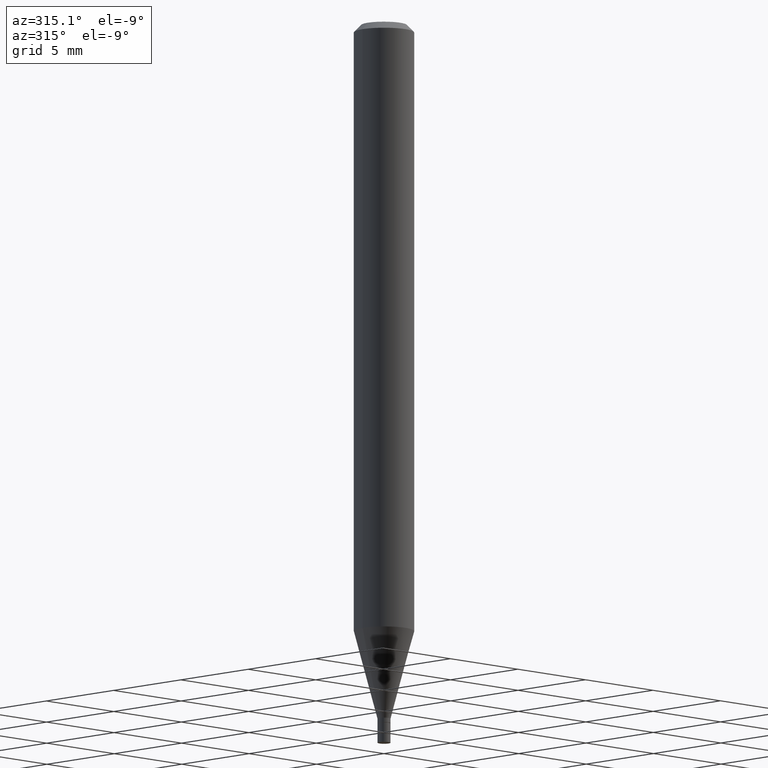
[diagram: clean part render]
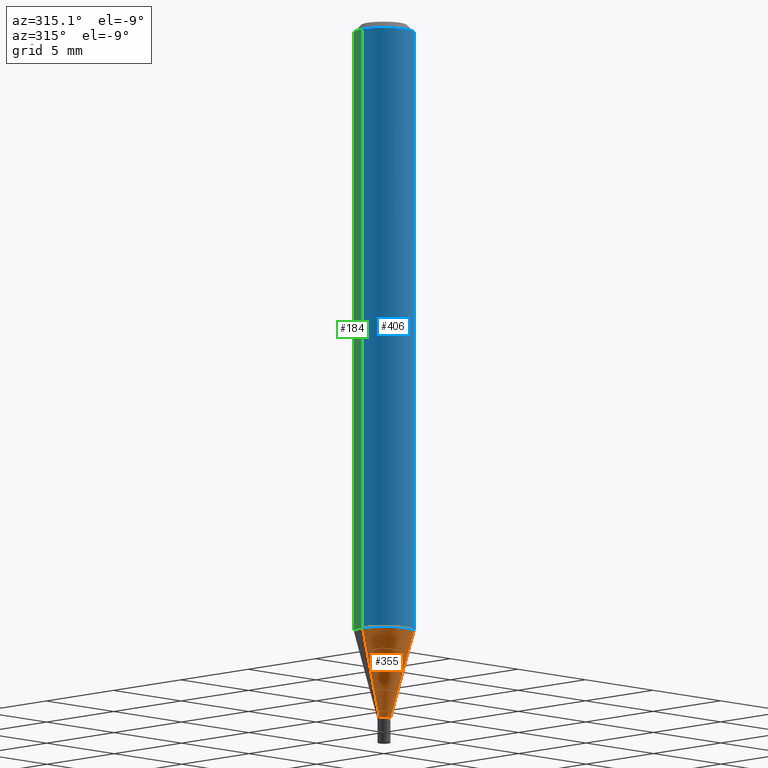
[diagram: same view with three faces highlighted in distinct colors, each labeled with its STEP entity id]
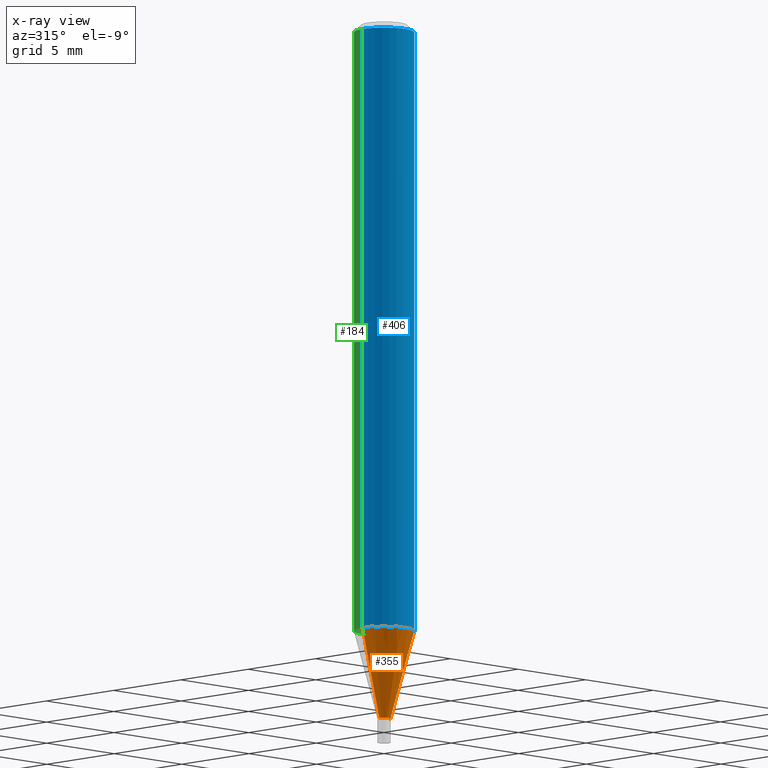
[diagram: x-ray of the same camera — body ghosted, the three highlighted faces saturated]
A machine part, auxiliary view with three faces highlighted in distinct colors.
The next image is the same camera in x-ray (body ghosted, the three faces saturated) — at least one of them is partly hidden behind the body in this view.
Their STEP definitions:

[orange] entity #355 — the highlighted conical surface has half-angle 15 deg.
#11 = VERTEX_POINT ( 'NONE', #436 ) ;
#19 = VECTOR ( 'NONE', #440, 39.37007874015748854 ) ;
#36 = DIRECTION ( 'NONE',  ( 1.000000000000000000, -6.982962677686262766E-15, 0.000000000000000000 ) ) ;
#49 = AXIS2_PLACEMENT_3D ( 'NONE', #107, #235, #103 ) ;
#53 = VERTEX_POINT ( 'NONE', #386 ) ;
#67 = CARTESIAN_POINT ( 'NONE',  ( 3.097502956747977268E-29, -4.422413298891320100E-15, -1.266629510429125416 ) ) ;
#77 = CARTESIAN_POINT ( 'NONE',  ( 3.544707034565356049E-29, -5.060902200653140005E-15, -1.449500000000000233 ) ) ;
#91 = CIRCLE ( 'NONE', #49, 0.01349999999999992005 ) ;
#98 = EDGE_CURVE ( 'NONE', #11, #205, #119, .T. ) ;
#103 = DIRECTION ( 'NONE',  ( 1.000000000000000000, -6.982962677686266711E-15, 0.000000000000000000 ) ) ;
#107 = CARTESIAN_POINT ( 'NONE',  ( 3.544707034565356049E-29, -5.060902200653140005E-15, -1.449500000000000233 ) ) ;
#119 = CIRCLE ( 'NONE', #337, 0.06250000000000000000 ) ;
#126 = VECTOR ( 'NONE', #214, 39.37007874015748854 ) ;
#156 = CONICAL_SURFACE ( 'NONE', #276, 0.01349999999999992005, 0.2617993877991499629 ) ;
#177 = DIRECTION ( 'NONE',  ( -2.445468806185136597E-29, 3.491481338843145583E-15, 1.000000000000000000 ) ) ;
#197 = EDGE_CURVE ( 'NONE', #330, #11, #295, .T. ) ;
#205 = VERTEX_POINT ( 'NONE', #291 ) ;
#214 = DIRECTION ( 'NONE',  ( 0.2588190451025212391, 1.565188264969622362E-15, 0.9659258262890679791 ) ) ;
#222 = DIRECTION ( 'NONE',  ( -2.445468806185136597E-29, 3.491481338843145583E-15, 1.000000000000000000 ) ) ;
#224 = ORIENTED_EDGE ( 'NONE', *, *, #375, .T. ) ;
#235 = DIRECTION ( 'NONE',  ( -2.445468806185136597E-29, 3.491481338843145583E-15, 1.000000000000000000 ) ) ;
#242 = ORIENTED_EDGE ( 'NONE', *, *, #98, .F. ) ;
#246 = CARTESIAN_POINT ( 'NONE',  ( 0.01349999999999992005, -5.155172196801903565E-15, -1.449500000000000233 ) ) ;
#255 = CARTESIAN_POINT ( 'NONE',  ( -0.01349999999999992005, -4.964978931325527578E-15, -1.449500000000000233 ) ) ;
#262 = ORIENTED_EDGE ( 'NONE', *, *, #197, .F. ) ;
#276 = AXIS2_PLACEMENT_3D ( 'NONE', #77, #222, #368 ) ;
#291 = CARTESIAN_POINT ( 'NONE',  ( 0.06249999999999999306, -4.858848466246711769E-15, -1.266629510429125416 ) ) ;
#295 = LINE ( 'NONE', #255, #19 ) ;
#326 = CARTESIAN_POINT ( 'NONE',  ( -0.01349999999999992005, -4.471651510183392531E-15, -1.449500000000000233 ) ) ;
#330 = VERTEX_POINT ( 'NONE', #326 ) ;
#332 = LINE ( 'NONE', #246, #126 ) ;
#337 = AXIS2_PLACEMENT_3D ( 'NONE', #67, #177, #36 ) ;
#355 = ADVANCED_FACE ( 'NONE', ( #402 ), #156, .T. ) ;
#364 = EDGE_CURVE ( 'NONE', #53, #205, #332, .T. ) ;
#368 = DIRECTION ( 'NONE',  ( 1.000000000000000000, -6.982962677686266711E-15, 0.000000000000000000 ) ) ;
#375 = EDGE_CURVE ( 'NONE', #330, #53, #91, .T. ) ;
#386 = CARTESIAN_POINT ( 'NONE',  ( 0.01349999999999992005, -5.155172196801903565E-15, -1.449500000000000233 ) ) ;
#402 = FACE_OUTER_BOUND ( 'NONE', #404, .T. ) ;
#404 = EDGE_LOOP ( 'NONE', ( #262, #224, #448, #242 ) ) ;
#436 = CARTESIAN_POINT ( 'NONE',  ( -0.06249999999999999306, -3.978324089041258273E-15, -1.266629510429125416 ) ) ;
#440 = DIRECTION ( 'NONE',  ( -0.2588190451025212391, 5.211531920934549464E-15, 0.9659258262890679791 ) ) ;
#448 = ORIENTED_EDGE ( 'NONE', *, *, #364, .T. ) ;

[blue] entity #406 — the highlighted cylindrical surface (edge-blend (fillet) strip) has radius 1.5875 mm, axis along (-0, 0, 1).
#11 = VERTEX_POINT ( 'NONE', #436 ) ;
#20 = ORIENTED_EDGE ( 'NONE', *, *, #203, .T. ) ;
#36 = DIRECTION ( 'NONE',  ( 1.000000000000000000, -6.982962677686262766E-15, 0.000000000000000000 ) ) ;
#38 = CARTESIAN_POINT ( 'NONE',  ( 0.06250000000000000000, -4.888073874380388472E-16, -0.01499999999999999944 ) ) ;
#67 = CARTESIAN_POINT ( 'NONE',  ( 3.097502956747977268E-29, -4.422413298891320100E-15, -1.266629510429125416 ) ) ;
#68 = DIRECTION ( 'NONE',  ( -2.445468806185136597E-29, 3.491481338843145583E-15, 1.000000000000000000 ) ) ;
#74 = CARTESIAN_POINT ( 'NONE',  ( 3.668203209277705088E-31, -5.237222008264718399E-17, -0.01499999999999999944 ) ) ;
#86 = LINE ( 'NONE', #446, #385 ) ;
#98 = EDGE_CURVE ( 'NONE', #11, #205, #119, .T. ) ;
#106 = VERTEX_POINT ( 'NONE', #38 ) ;
#119 = CIRCLE ( 'NONE', #337, 0.06250000000000000000 ) ;
#131 = EDGE_LOOP ( 'NONE', ( #373, #163, #20, #292 ) ) ;
#151 = DIRECTION ( 'NONE',  ( -2.445468806185136597E-29, 3.491481338843145583E-15, 1.000000000000000000 ) ) ;
#154 = DIRECTION ( 'NONE',  ( 1.000000000000000000, -6.982962677686266711E-15, 0.000000000000000000 ) ) ;
#162 = AXIS2_PLACEMENT_3D ( 'NONE', #393, #68, #358 ) ;
#163 = ORIENTED_EDGE ( 'NONE', *, *, #98, .T. ) ;
#167 = CYLINDRICAL_SURFACE ( 'NONE', #162, 0.06250000000000000000 ) ;
#177 = DIRECTION ( 'NONE',  ( -2.445468806185136597E-29, 3.491481338843145583E-15, 1.000000000000000000 ) ) ;
#191 = EDGE_CURVE ( 'NONE', #417, #106, #395, .T. ) ;
#193 = AXIS2_PLACEMENT_3D ( 'NONE', #74, #151, #154 ) ;
#203 = EDGE_CURVE ( 'NONE', #205, #106, #447, .T. ) ;
#204 = FACE_OUTER_BOUND ( 'NONE', #131, .T. ) ;
#205 = VERTEX_POINT ( 'NONE', #291 ) ;
#217 = DIRECTION ( 'NONE',  ( -2.445468806185136877E-29, 3.491481338843145188E-15, 1.000000000000000000 ) ) ;
#258 = DIRECTION ( 'NONE',  ( -2.445468806185136877E-29, 3.491481338843145188E-15, 1.000000000000000000 ) ) ;
#291 = CARTESIAN_POINT ( 'NONE',  ( 0.06249999999999999306, -4.858848466246711769E-15, -1.266629510429125416 ) ) ;
#292 = ORIENTED_EDGE ( 'NONE', *, *, #191, .F. ) ;
#337 = AXIS2_PLACEMENT_3D ( 'NONE', #67, #177, #36 ) ;
#356 = VECTOR ( 'NONE', #217, 39.37007874015748143 ) ;
#358 = DIRECTION ( 'NONE',  ( 1.000000000000000000, -6.982962677686266711E-15, 4.876176775795935793E-29 ) ) ;
#371 = EDGE_CURVE ( 'NONE', #11, #417, #86, .T. ) ;
#373 = ORIENTED_EDGE ( 'NONE', *, *, #371, .F. ) ;
#384 = CARTESIAN_POINT ( 'NONE',  ( -0.06250000000000000000, -1.793303549636921171E-15, -0.01499999999999999944 ) ) ;
#385 = VECTOR ( 'NONE', #258, 39.37007874015748143 ) ;
#393 = CARTESIAN_POINT ( 'NONE',  ( 0.000000000000000000, 0.000000000000000000, 0.000000000000000000 ) ) ;
#395 = CIRCLE ( 'NONE', #193, 0.06250000000000000000 ) ;
#406 = ADVANCED_FACE ( 'NONE', ( #204 ), #167, .T. ) ;
#417 = VERTEX_POINT ( 'NONE', #384 ) ;
#436 = CARTESIAN_POINT ( 'NONE',  ( -0.06249999999999999306, -3.978324089041258273E-15, -1.266629510429125416 ) ) ;
#445 = CARTESIAN_POINT ( 'NONE',  ( 0.06250000000000000000, -4.364351673553916694E-16, 3.047610484872459871E-30 ) ) ;
#446 = CARTESIAN_POINT ( 'NONE',  ( -0.06250000000000000000, 4.440892098500626162E-16, -3.074334431409316114E-30 ) ) ;
#447 = LINE ( 'NONE', #445, #356 ) ;

[green] entity #184 — the highlighted cylindrical surface (edge-blend (fillet) strip) has radius 1.5875 mm, axis along (-0, 0, 1).
#11 = VERTEX_POINT ( 'NONE', #436 ) ;
#29 = DIRECTION ( 'NONE',  ( 1.000000000000000000, -6.982962677686262766E-15, 0.000000000000000000 ) ) ;
#38 = CARTESIAN_POINT ( 'NONE',  ( 0.06250000000000000000, -4.888073874380388472E-16, -0.01499999999999999944 ) ) ;
#44 = EDGE_CURVE ( 'NONE', #205, #11, #82, .T. ) ;
#69 = AXIS2_PLACEMENT_3D ( 'NONE', #398, #288, #259 ) ;
#82 = CIRCLE ( 'NONE', #124, 0.06250000000000000000 ) ;
#86 = LINE ( 'NONE', #446, #385 ) ;
#90 = ORIENTED_EDGE ( 'NONE', *, *, #328, .F. ) ;
#106 = VERTEX_POINT ( 'NONE', #38 ) ;
#112 = DIRECTION ( 'NONE',  ( 1.000000000000000000, -6.982962677686266711E-15, 0.000000000000000000 ) ) ;
#124 = AXIS2_PLACEMENT_3D ( 'NONE', #465, #247, #29 ) ;
#148 = FACE_OUTER_BOUND ( 'NONE', #346, .T. ) ;
#155 = CYLINDRICAL_SURFACE ( 'NONE', #69, 0.06250000000000000000 ) ;
#161 = ORIENTED_EDGE ( 'NONE', *, *, #371, .T. ) ;
#184 = ADVANCED_FACE ( 'NONE', ( #148 ), #155, .T. ) ;
#200 = ORIENTED_EDGE ( 'NONE', *, *, #44, .T. ) ;
#203 = EDGE_CURVE ( 'NONE', #205, #106, #447, .T. ) ;
#205 = VERTEX_POINT ( 'NONE', #291 ) ;
#217 = DIRECTION ( 'NONE',  ( -2.445468806185136877E-29, 3.491481338843145188E-15, 1.000000000000000000 ) ) ;
#247 = DIRECTION ( 'NONE',  ( -2.445468806185136597E-29, 3.491481338843145583E-15, 1.000000000000000000 ) ) ;
#258 = DIRECTION ( 'NONE',  ( -2.445468806185136877E-29, 3.491481338843145188E-15, 1.000000000000000000 ) ) ;
#259 = DIRECTION ( 'NONE',  ( 1.000000000000000000, -6.982962677686266711E-15, 4.876176775795935793E-29 ) ) ;
#288 = DIRECTION ( 'NONE',  ( -2.445468806185136597E-29, 3.491481338843145583E-15, 1.000000000000000000 ) ) ;
#291 = CARTESIAN_POINT ( 'NONE',  ( 0.06249999999999999306, -4.858848466246711769E-15, -1.266629510429125416 ) ) ;
#294 = DIRECTION ( 'NONE',  ( -2.445468806185136597E-29, 3.491481338843145583E-15, 1.000000000000000000 ) ) ;
#328 = EDGE_CURVE ( 'NONE', #106, #417, #411, .T. ) ;
#346 = EDGE_LOOP ( 'NONE', ( #200, #161, #90, #360 ) ) ;
#356 = VECTOR ( 'NONE', #217, 39.37007874015748143 ) ;
#360 = ORIENTED_EDGE ( 'NONE', *, *, #203, .F. ) ;
#371 = EDGE_CURVE ( 'NONE', #11, #417, #86, .T. ) ;
#384 = CARTESIAN_POINT ( 'NONE',  ( -0.06250000000000000000, -1.793303549636921171E-15, -0.01499999999999999944 ) ) ;
#385 = VECTOR ( 'NONE', #258, 39.37007874015748143 ) ;
#398 = CARTESIAN_POINT ( 'NONE',  ( 0.000000000000000000, 0.000000000000000000, 0.000000000000000000 ) ) ;
#399 = CARTESIAN_POINT ( 'NONE',  ( 3.668203209277705088E-31, -5.237222008264718399E-17, -0.01499999999999999944 ) ) ;
#411 = CIRCLE ( 'NONE', #419, 0.06250000000000000000 ) ;
#417 = VERTEX_POINT ( 'NONE', #384 ) ;
#419 = AXIS2_PLACEMENT_3D ( 'NONE', #399, #294, #112 ) ;
#436 = CARTESIAN_POINT ( 'NONE',  ( -0.06249999999999999306, -3.978324089041258273E-15, -1.266629510429125416 ) ) ;
#445 = CARTESIAN_POINT ( 'NONE',  ( 0.06250000000000000000, -4.364351673553916694E-16, 3.047610484872459871E-30 ) ) ;
#446 = CARTESIAN_POINT ( 'NONE',  ( -0.06250000000000000000, 4.440892098500626162E-16, -3.074334431409316114E-30 ) ) ;
#447 = LINE ( 'NONE', #445, #356 ) ;
#465 = CARTESIAN_POINT ( 'NONE',  ( 3.097502956747977268E-29, -4.422413298891320100E-15, -1.266629510429125416 ) ) ;